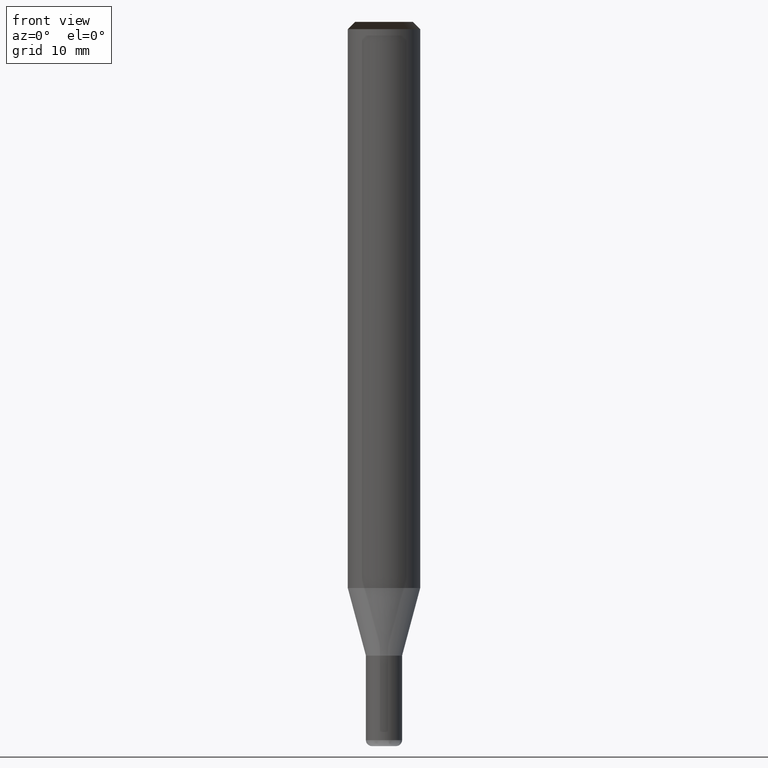
[diagram: clean part render]
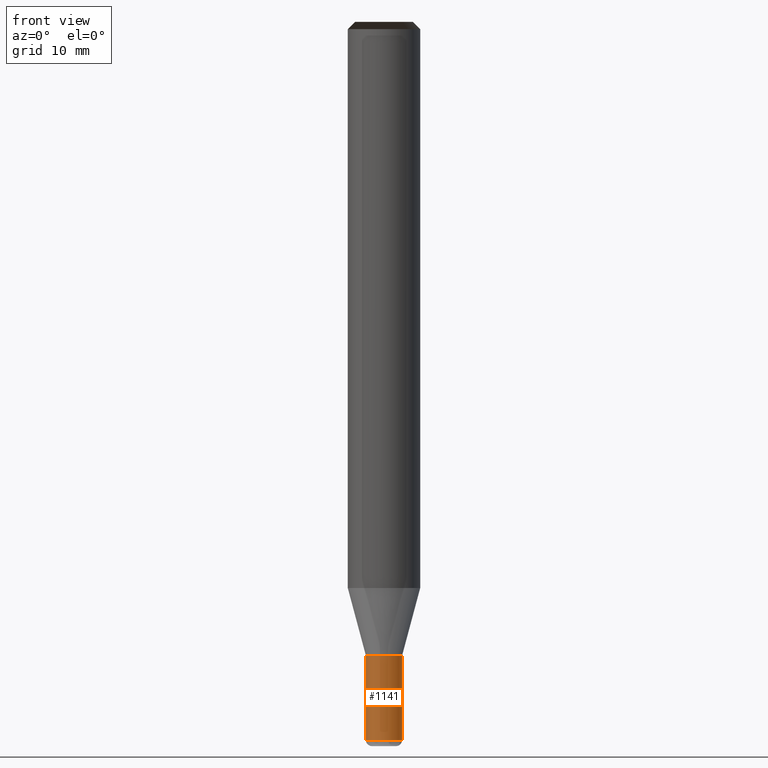
[diagram: same view with one face highlighted and labeled with its STEP entity id]
A machine part, front view. The second image highlights one B-rep face of the part: STEP entity #1141.
In plain terms, the highlighted face is a freeform B-spline surface patch.
Its self-contained STEP definition (entity closure, byte-faithful):
#951=CARTESIAN_POINT('',(1.5,0.0,-12.598076211353));
#955=CARTESIAN_POINT('',(-1.5,0.0,-12.598076211353));
#956=CARTESIAN_POINT('',(1.5,0.0,-5.598076211353));
#960=CARTESIAN_POINT('',(-1.5,0.0,-5.598076211353));
#974=CARTESIAN_POINT('',(-1.5,-1.5,-12.598076211353));
#975=CARTESIAN_POINT('',(0.0,-1.5,-12.598076211353));
#976=CARTESIAN_POINT('',(1.5,-1.5,-12.598076211353));
#977=CARTESIAN_POINT('',(-1.5,-1.5,-5.598076211353));
#978=CARTESIAN_POINT('',(0.0,-1.5,-5.598076211353));
#979=CARTESIAN_POINT('',(1.5,-1.5,-5.598076211353));
#1122=(
BOUNDED_SURFACE()
B_SPLINE_SURFACE(1,2,(
(#955,#974,#975,#976,#951),
(#960,#977,#978,#979,#956)
), .UNSPECIFIED.,.F.,.F.,.F.)
B_SPLINE_SURFACE_WITH_KNOTS((2,2),(3,2,3),(
0.0,1.0),(
0.0,0.5,1.0), .UNSPECIFIED.)
GEOMETRIC_REPRESENTATION_ITEM()
RATIONAL_B_SPLINE_SURFACE(((1.0,0.707106781187,1.0,0.707106781187,1.0),
(1.0,0.707106781187,1.0,0.707106781187,1.0)
))
REPRESENTATION_ITEM('')
SURFACE()
);
#1123=(
BOUNDED_CURVE()
B_SPLINE_CURVE(1,(#960,#955),.UNSPECIFIED.,.F.,.F.)
B_SPLINE_CURVE_WITH_KNOTS((2,2),
(0.0,1.0),.UNSPECIFIED.)
CURVE()
GEOMETRIC_REPRESENTATION_ITEM()
RATIONAL_B_SPLINE_CURVE((1.0,1.0))
REPRESENTATION_ITEM('')
);
#1124=(
BOUNDED_CURVE()
B_SPLINE_CURVE(2,(#955,#974,#975,#976,#951),.UNSPECIFIED.,.F.,.F.)
B_SPLINE_CURVE_WITH_KNOTS((3,2,3),
(0.0,0.5,1.0),.UNSPECIFIED.)
CURVE()
GEOMETRIC_REPRESENTATION_ITEM()
RATIONAL_B_SPLINE_CURVE((1.0,0.707106781187,1.0,0.707106781187,1.0))
REPRESENTATION_ITEM('')
);
#1125=(
BOUNDED_CURVE()
B_SPLINE_CURVE(1,(#951,#956),.UNSPECIFIED.,.F.,.F.)
B_SPLINE_CURVE_WITH_KNOTS((2,2),
(0.0,1.0),.UNSPECIFIED.)
CURVE()
GEOMETRIC_REPRESENTATION_ITEM()
RATIONAL_B_SPLINE_CURVE((1.0,1.0))
REPRESENTATION_ITEM('')
);
#1126=(
BOUNDED_CURVE()
B_SPLINE_CURVE(2,(#956,#979,#978,#977,#960),.UNSPECIFIED.,.F.,.F.)
B_SPLINE_CURVE_WITH_KNOTS((3,2,3),
(0.0,0.5,1.0),.UNSPECIFIED.)
CURVE()
GEOMETRIC_REPRESENTATION_ITEM()
RATIONAL_B_SPLINE_CURVE((1.0,0.707106781187,1.0,0.707106781187,1.0))
REPRESENTATION_ITEM('')
);
#1127=VERTEX_POINT('',#951);
#1128=VERTEX_POINT('',#955);
#1129=VERTEX_POINT('',#956);
#1130=VERTEX_POINT('',#960);
#1131=EDGE_CURVE('',#1130,#1128,#1123,.T.);
#1132=EDGE_CURVE('',#1128,#1127,#1124,.T.);
#1133=EDGE_CURVE('',#1127,#1129,#1125,.T.);
#1134=EDGE_CURVE('',#1129,#1130,#1126,.T.);
#1135=ORIENTED_EDGE('',*,*,#1131,.T.);
#1136=ORIENTED_EDGE('',*,*,#1132,.T.);
#1137=ORIENTED_EDGE('',*,*,#1133,.T.);
#1138=ORIENTED_EDGE('',*,*,#1134,.T.);
#1139=EDGE_LOOP('',(#1135,#1136,#1137,#1138));
#1140=FACE_OUTER_BOUND('',#1139,.T.);
#1141=ADVANCED_FACE('',(#1140),#1122,.T.);